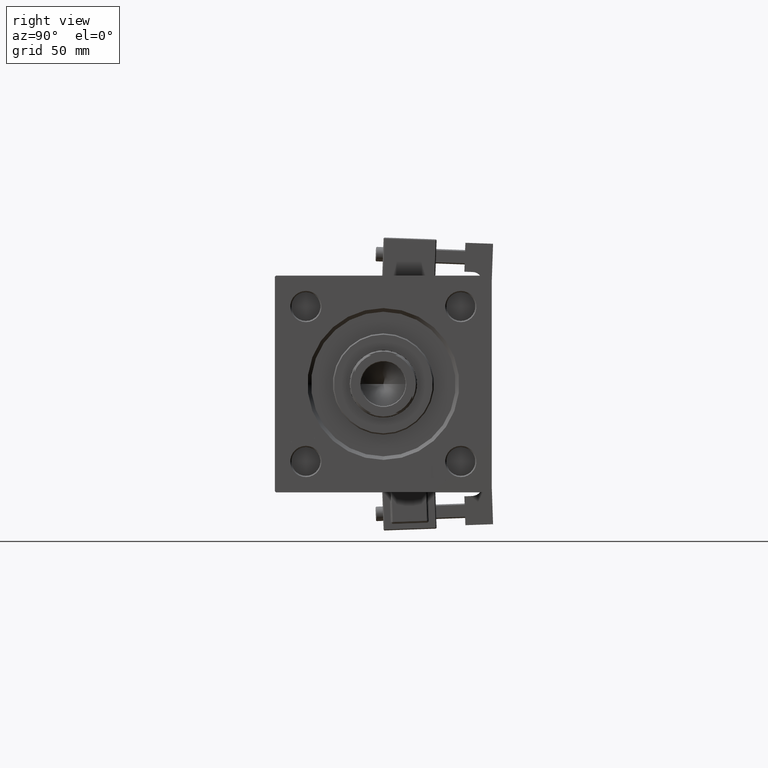
[diagram: clean part render]
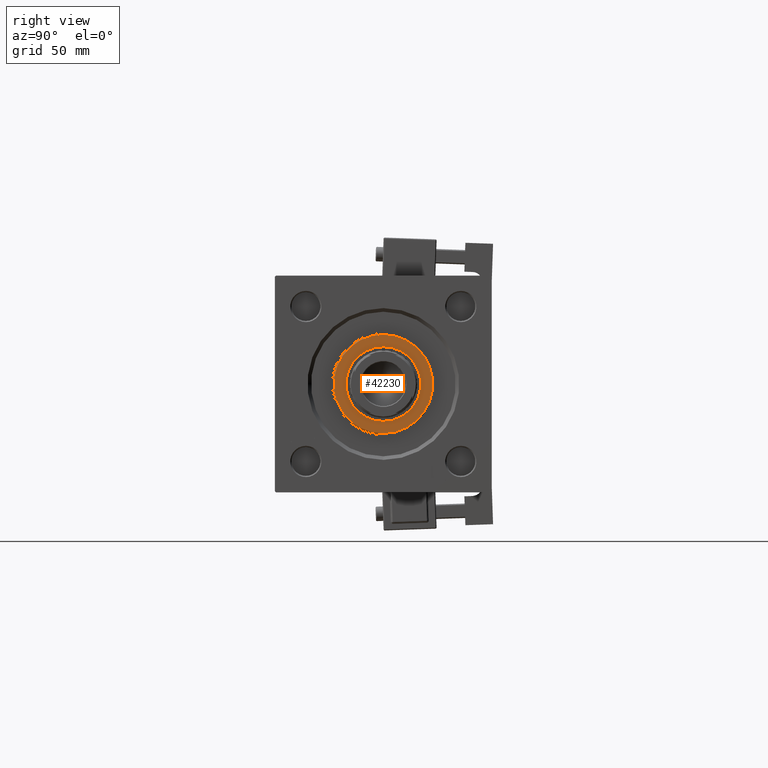
[diagram: same view with one face highlighted and labeled with its STEP entity id]
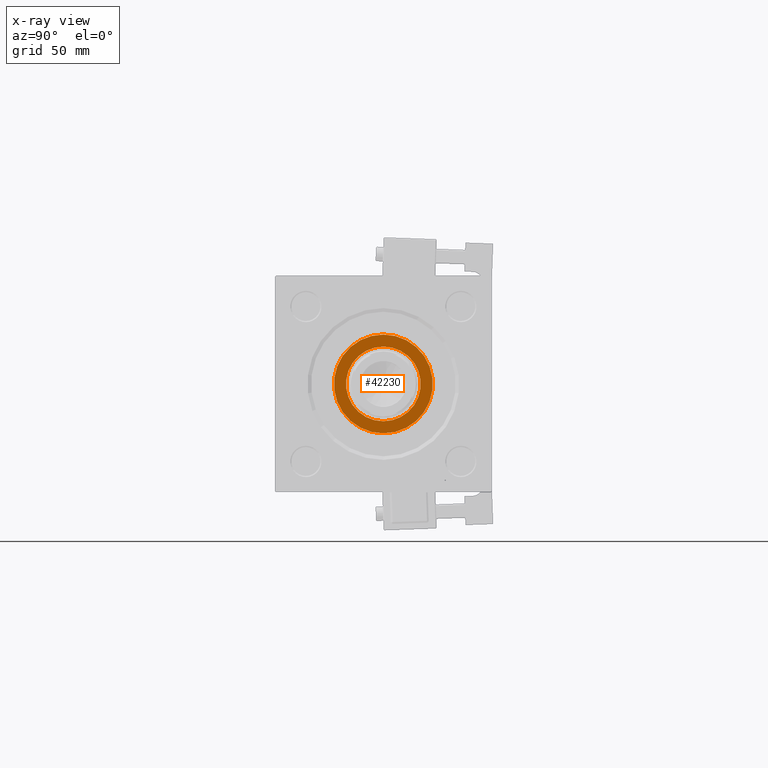
[diagram: x-ray of the same camera — body ghosted, the highlighted face saturated]
A machine part, right view. The second image highlights one B-rep face of the part: STEP entity #42230.
The next image is the same camera in x-ray: the body ghosted, the highlighted face saturated — about 0% of this face is hidden behind the body in this view.
In plain terms, the highlighted planar face has unit normal (1, 0, 0).
Its self-contained STEP definition (entity closure, byte-faithful):
#2044 = ORIENTED_EDGE ( 'NONE', *, *, #9471, .T. ) ;
#2615 = DIRECTION ( 'NONE',  ( 0.000000000000000000, 0.000000000000000000, 1.000000000000000000 ) ) ;
#3501 = AXIS2_PLACEMENT_3D ( 'NONE', #12532, #42013, #8199 ) ;
#4091 = FACE_OUTER_BOUND ( 'NONE', #21046, .T. ) ;
#5016 = CARTESIAN_POINT ( 'NONE',  ( -15.50000000000000000, 1.898202538678397557E-15, 39.69999999999999574 ) ) ;
#8199 = DIRECTION ( 'NONE',  ( 1.000000000000000000, 0.000000000000000000, 0.000000000000000000 ) ) ;
#8692 = DIRECTION ( 'NONE',  ( 0.000000000000000000, 0.000000000000000000, 1.000000000000000000 ) ) ;
#9471 = EDGE_CURVE ( 'NONE', #53267, #39103, #24239, .T. ) ;
#12532 = CARTESIAN_POINT ( 'NONE',  ( 0.000000000000000000, 0.000000000000000000, 39.69999999999999574 ) ) ;
#15499 = CARTESIAN_POINT ( 'NONE',  ( 15.50000000000000000, 0.000000000000000000, 39.69999999999999574 ) ) ;
#19138 = DIRECTION ( 'NONE',  ( 1.000000000000000000, 0.000000000000000000, 0.000000000000000000 ) ) ;
#21046 = EDGE_LOOP ( 'NONE', ( #2044, #46227 ) ) ;
#21287 = VERTEX_POINT ( 'NONE', #5016 ) ;
#21421 = FACE_BOUND ( 'NONE', #25106, .T. ) ;
#24239 = CIRCLE ( 'NONE', #32883, 20.50000000000000355 ) ;
#24347 = CARTESIAN_POINT ( 'NONE',  ( 0.000000000000000000, 0.000000000000000000, 39.69999999999999574 ) ) ;
#24569 = EDGE_CURVE ( 'NONE', #51621, #21287, #50659, .T. ) ;
#25106 = EDGE_LOOP ( 'NONE', ( #52233, #44094 ) ) ;
#26859 = CIRCLE ( 'NONE', #3501, 20.50000000000000355 ) ;
#28934 = DIRECTION ( 'NONE',  ( 0.000000000000000000, 0.000000000000000000, 1.000000000000000000 ) ) ;
#29255 = CARTESIAN_POINT ( 'NONE',  ( 0.000000000000000000, 0.000000000000000000, 39.69999999999999574 ) ) ;
#30127 = AXIS2_PLACEMENT_3D ( 'NONE', #29255, #8692, #45529 ) ;
#32883 = AXIS2_PLACEMENT_3D ( 'NONE', #36053, #52605, #48530 ) ;
#33514 = CARTESIAN_POINT ( 'NONE',  ( -20.50000000000000355, 0.000000000000000000, 39.69999999999999574 ) ) ;
#33569 = AXIS2_PLACEMENT_3D ( 'NONE', #24347, #28934, #53348 ) ;
#33661 = EDGE_CURVE ( 'NONE', #21287, #51621, #48279, .T. ) ;
#35099 = AXIS2_PLACEMENT_3D ( 'NONE', #39716, #2615, #19138 ) ;
#36053 = CARTESIAN_POINT ( 'NONE',  ( 0.000000000000000000, 0.000000000000000000, 39.69999999999999574 ) ) ;
#37128 = PLANE ( 'NONE',  #30127 ) ;
#39103 = VERTEX_POINT ( 'NONE', #46123 ) ;
#39716 = CARTESIAN_POINT ( 'NONE',  ( 0.000000000000000000, 0.000000000000000000, 39.69999999999999574 ) ) ;
#42013 = DIRECTION ( 'NONE',  ( 0.000000000000000000, 0.000000000000000000, 1.000000000000000000 ) ) ;
#42230 = ADVANCED_FACE ( 'NONE', ( #21421, #4091 ), #37128, .T. ) ;
#44094 = ORIENTED_EDGE ( 'NONE', *, *, #33661, .F. ) ;
#45529 = DIRECTION ( 'NONE',  ( 1.000000000000000000, 0.000000000000000000, -0.000000000000000000 ) ) ;
#45985 = EDGE_CURVE ( 'NONE', #39103, #53267, #26859, .T. ) ;
#46123 = CARTESIAN_POINT ( 'NONE',  ( 20.50000000000000355, 2.541142108230758269E-15, 39.69999999999999574 ) ) ;
#46227 = ORIENTED_EDGE ( 'NONE', *, *, #45985, .T. ) ;
#48279 = CIRCLE ( 'NONE', #33569, 15.50000000000000000 ) ;
#48530 = DIRECTION ( 'NONE',  ( 1.000000000000000000, 0.000000000000000000, 0.000000000000000000 ) ) ;
#50659 = CIRCLE ( 'NONE', #35099, 15.50000000000000000 ) ;
#51621 = VERTEX_POINT ( 'NONE', #15499 ) ;
#52233 = ORIENTED_EDGE ( 'NONE', *, *, #24569, .F. ) ;
#52605 = DIRECTION ( 'NONE',  ( 0.000000000000000000, 0.000000000000000000, 1.000000000000000000 ) ) ;
#53267 = VERTEX_POINT ( 'NONE', #33514 ) ;
#53348 = DIRECTION ( 'NONE',  ( 1.000000000000000000, 0.000000000000000000, 0.000000000000000000 ) ) ;